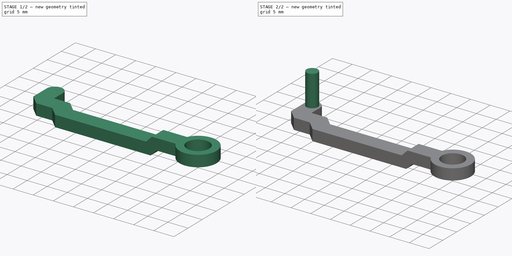
[diagram: build sequence overview — one tinted view per stage of 2, left to right]
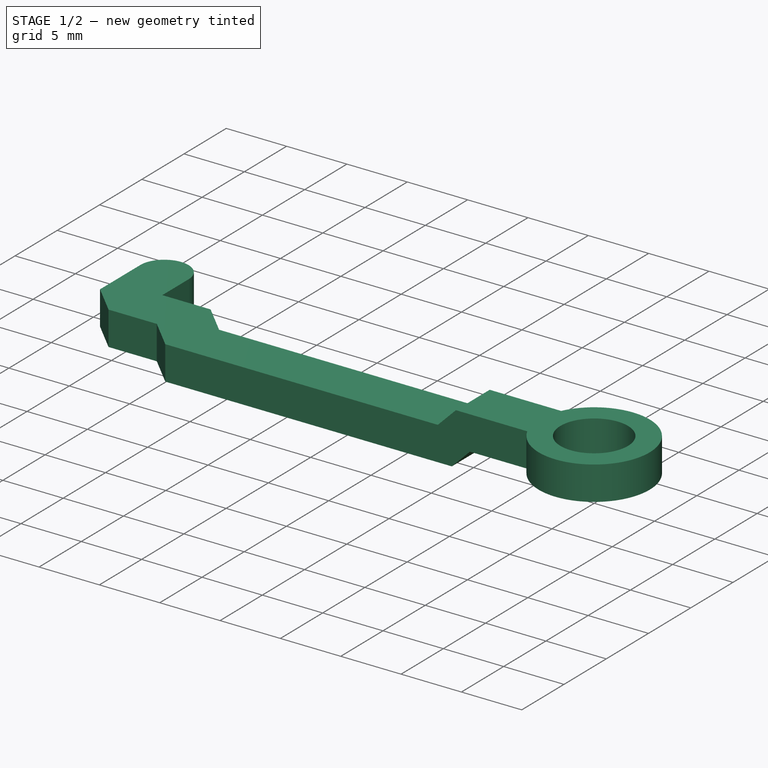
[diagram: stage 1 of 2 — iso view after this stage's code; geometry added in this stage tinted green]
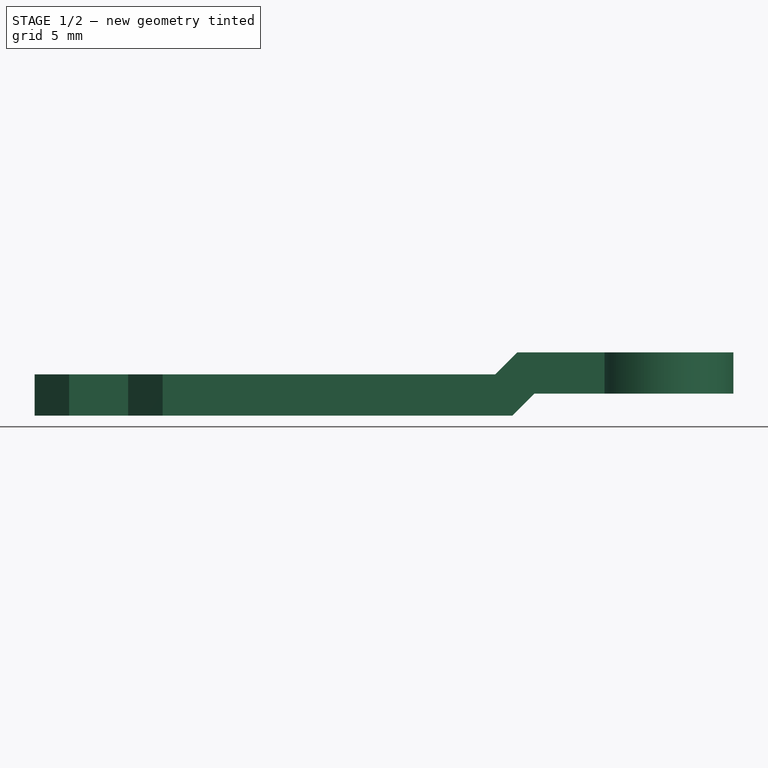
[diagram: stage 1 of 2 — front view after this stage's code; geometry added in this stage tinted green]
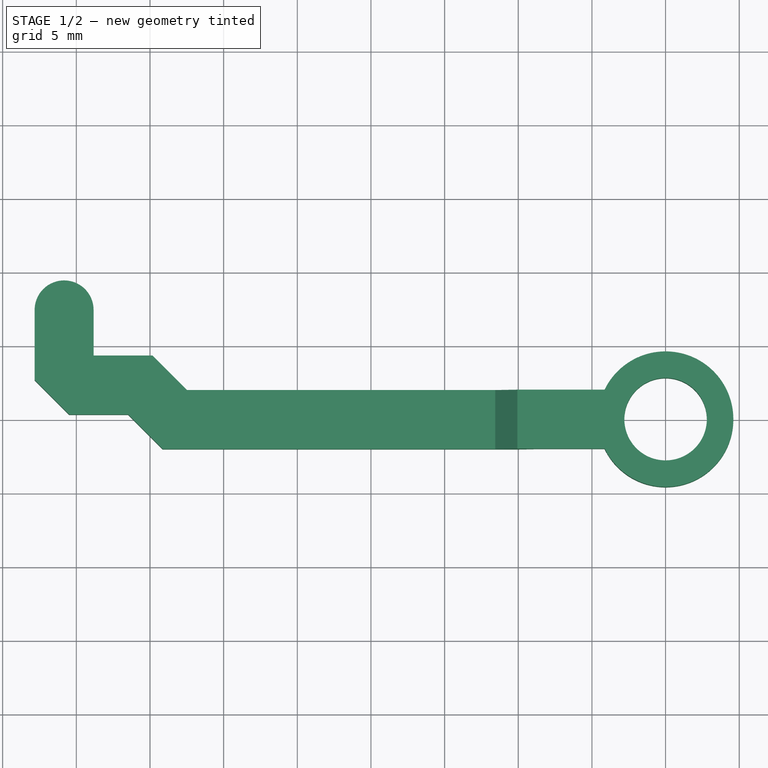
[diagram: stage 1 of 2 — top view after this stage's code; geometry added in this stage tinted green]
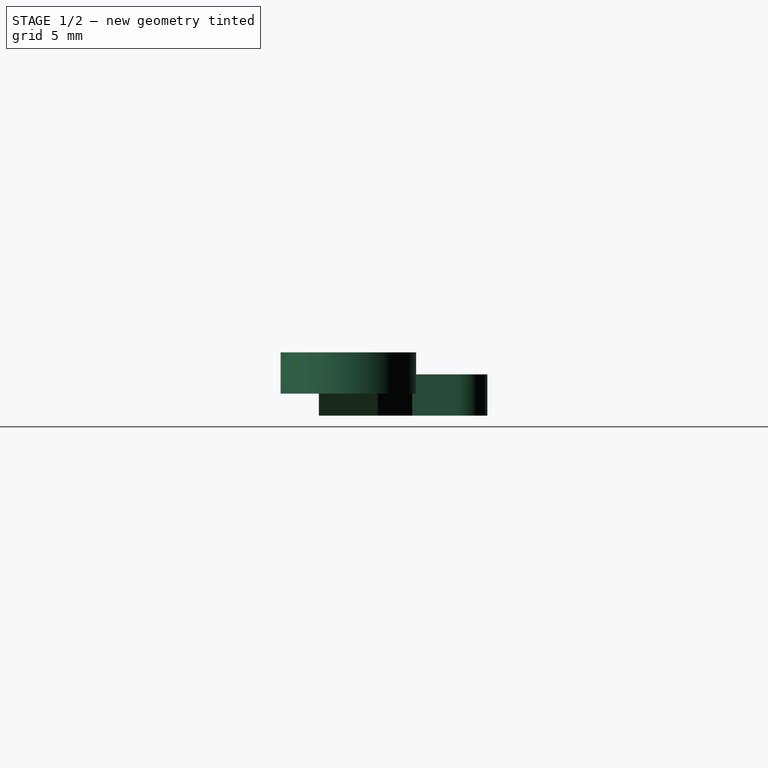
[diagram: stage 1 of 2 — right view after this stage's code; geometry added in this stage tinted green]
FCSTD DOCUMENT  (FreeCAD 0.19R24291 (Git))
Label: RoboDogPart
License: All rights reserved
LicenseURL: http://en.wikipedia.org/wiki/All_rights_reserved
objects: Sketcher::SketchObject×5, PartDesign::Pad×2, PartDesign::Pocket×1, PartDesign::Body×1
note: 12 computed .brp shape members not serialized (recipe doc carries the construction recipe); baked Part::Feature solids carry a one-line shape summary decoded from their .brp

FEATURE [Sketcher::SketchObject] Sketch  label="TTop"
  FullyConstrained = true
  MapMode = 5
  Support = -> [XY_Plane]
  sketch-geometry (22):
    g0: Circle CenterX=0 CenterY=0 CenterZ=0 NormalX=0 NormalY=0 NormalZ=1 AngleXU=0 Radius=2.8
    g1: ArcOfCircle CenterX=0 CenterY=0 CenterZ=0 NormalX=0 NormalY=0 NormalZ=1 AngleXU=0 Radius=4.6 StartAngle=3.59139 EndAngle=8.97498
    g2: LineSegment StartX=-4.14246 StartY=2 StartZ=0 EndX=-32.4856 EndY=2 EndZ=0
    g3: LineSegment StartX=-32.4856 StartY=2 StartZ=0 EndX=-34.8288 EndY=4.34315 EndZ=0
    g4: LineSegment StartX=-34.8288 StartY=4.34315 StartZ=0 EndX=-38.8288 EndY=4.34315 EndZ=0
    g5: LineSegment StartX=-38.8288 StartY=4.34315 StartZ=0 EndX=-38.8288 EndY=7.44315 EndZ=0
    g6: LineSegment StartX=-42.8288 StartY=7.44315 StartZ=0 EndX=-42.8288 EndY=2.68629 EndZ=0
    g7: LineSegment StartX=-42.8288 StartY=2.68629 StartZ=0 EndX=-40.4856 EndY=0.343146 EndZ=0
    g8: LineSegment StartX=-40.4856 StartY=0.343146 StartZ=0 EndX=-36.4856 EndY=0.343146 EndZ=0
    g9: LineSegment StartX=-4.14246 StartY=-2 StartZ=0 EndX=-34.1425 EndY=-2 EndZ=0
    g10: LineSegment StartX=-36.4856 StartY=0.343146 StartZ=0 EndX=-34.1425 EndY=-2 EndZ=0
    g11: LineSegment StartX=-42.8288 StartY=7.44315 StartZ=0 EndX=-38.8288 EndY=7.44315 EndZ=0
    g12: LineSegment StartX=-4.14246 StartY=2 StartZ=0 EndX=-4.14246 EndY=-2 EndZ=0
    g13: LineSegment StartX=-36.4856 StartY=0.343146 StartZ=0 EndX=-36.4856 EndY=4.34315 EndZ=0
    g14: LineSegment StartX=-32.4856 StartY=2 StartZ=0 EndX=-35.314 EndY=-0.828427 EndZ=0
    g15: ArcOfCircle CenterX=-40.8288 CenterY=7.44315 CenterZ=0 NormalX=0 NormalY=0 NormalZ=1 AngleXU=0 Radius=2 StartAngle=-2.7e-15 EndAngle=3.14159
    g16: LineSegment StartX=-38.8288 StartY=4.34315 StartZ=0 EndX=-41.6572 EndY=1.51472 EndZ=0
    g17: LineSegment StartX=0 StartY=4.6 StartZ=0 EndX=0 EndY=2.8 EndZ=0
    g18: LineSegment StartX=-40.8288 StartY=7.44315 StartZ=0 EndX=-40.8288 EndY=9.44315 EndZ=0
    g19: Circle CenterX=-40.8288 CenterY=7.44315 CenterZ=0 NormalX=0 NormalY=0 NormalZ=1 AngleXU=0 Radius=1.45
    g20: LineSegment StartX=-42.8288 StartY=-4.6 StartZ=0 EndX=4.6 EndY=-4.6 EndZ=0
    g21: LineSegment StartX=4.6 StartY=-4.6 StartZ=0 EndX=4.6 EndY=0 EndZ=0
  constraints (63):
    c: Coincident(g1,g0)
    c: Coincident(g2,g1)
    c: Horizontal(g2)
    c: Coincident(g3,g2)
    c: Coincident(g4,g3)
    c: Horizontal(g4)
    c: Coincident(g5,g4)
    c: Vertical(g5)
    c: Vertical(g6)
    c: Coincident(g7,g6)
    c: Coincident(g8,g7)
    c: Horizontal(g8)
    c: Coincident(g9,g1)
    c: Horizontal(g9)
    c: Coincident(g10,g8)
    c: Coincident(g10,g9)
    c: Coincident(g11,g6)
    c: Coincident(g11,g5)
    c: Horizontal(g11)
    c: Coincident(g12,g1)
    c: Coincident(g12,g1)
    c: Vertical(g12)
    c: Coincident(g13,g8)
    c: PointOnObject(g13,g4)
    c: Vertical(g13)
    c: Equal(g12,g13)
    c: Equal(g13,g11)
    c: Parallel(g10,g3)
    c: Coincident(g14,g2)
    c: Perpendicular(g14,g3)
    c: Equal(g14,g13)
    c: PointOnObject(g15,g11)
    c: Coincident(g15,g6)
    c: Coincident(g15,g5)
    c: Coincident(g16,g4)
    c: Perpendicular(g16,g7)
    c: Equal(g16,g14)
    c: Symmetric(g7,g6,g16)
    c: DistanceX(g11,g11) = 4
    c: Radius(g1) = 4.6
    c: PointOnObject(g17,g1)
    c: PointOnObject(g17,g0)
    c: Vertical(g17)
    c: PointOnObject(g0,g17)
    c: DistanceY(g17,g17) = 1.8
    c: Symmetric(g8,g9,g14)
    c: Parallel(g10,g7)
    c: DistanceX(g9,g9) = 30
    c: Equal(g4,g13)
    c: Coincident(g18,g15)
    c: PointOnObject(g18,g15)
    c: Vertical(g18)
    c: DistanceY(g3,g18) = 5.1
    c: Coincident(g19,g15)
    c: Diameter(g19) = 2.9
    c: Diameter(g0) = 5.6
    c: Horizontal(g20)
    c: PointOnObject(g20,g6)
    c: Coincident(g21,g20)
    c: Vertical(g21)
    c: Tangent(g21,g1) = -1.5708
    c: Tangent(g20,g1)
    c: Coincident(g0,g-1)  '__ANCHOR__'
FEATURE [Sketcher::SketchObject] Sketch001  label="TFront"
  ExternalGeometry = -> [Sketch]
  FullyConstrained = true
  MapMode = 5
  Placement = pos=(0,0,0) rot=(1,0,0;1.5708rad)
  Support = -> [XZ_Plane]
  sketch-geometry (10):
    g0: LineSegment StartX=4.6 StartY=-1e-15 StartZ=0 EndX=-10.4 EndY=-1e-15 EndZ=0
    g1: LineSegment StartX=-10.4 StartY=-1e-15 StartZ=0 EndX=-8.9 EndY=1.5 EndZ=0
    g2: LineSegment StartX=-8.9 StartY=1.5 StartZ=0 EndX=4.6 EndY=1.5 EndZ=0
    g3: LineSegment StartX=4.6 StartY=1.5 StartZ=0 EndX=4.6 EndY=-1.1e-15 EndZ=0
    g4: LineSegment StartX=-10.0598 StartY=4.3 StartZ=0 EndX=-11.5598 EndY=2.8 EndZ=0
    g5: LineSegment StartX=-11.5598 StartY=2.8 StartZ=0 EndX=-42.8288 EndY=2.8 EndZ=0
    g6: LineSegment StartX=-42.8288 StartY=2.8 StartZ=0 EndX=-42.8288 EndY=4.3 EndZ=0
    g7: LineSegment StartX=-42.8288 StartY=4.3 StartZ=0 EndX=-10.0598 EndY=4.3 EndZ=0
    g8: LineSegment StartX=-42.8288 StartY=2.8 StartZ=0 EndX=-42.8288 EndY=-9e-16 EndZ=0
    g9: LineSegment StartX=-11.5598 StartY=2.8 StartZ=0 EndX=-9.5799 EndY=0.820101 EndZ=0
  constraints (28):
    c: Coincident(g-3,g0)
    c: PointOnObject(g0,g-3)
    c: Coincident(g0,g1)
    c: Coincident(g1,g2)
    c: Horizontal(g2)
    c: Coincident(g2,g3)
    c: Coincident(g3,g0)
    c: Vertical(g3)
    c: DistanceX(g2,g2) = 13.5
    c: Angle(g0,g1) = 0.785398
    c: DistanceY(g3,g3) = 1.5
    c: Coincident(g4,g5)
    c: Horizontal(g5)
    c: Coincident(g5,g6)
    c: Vertical(g6)
    c: Coincident(g6,g7)
    c: Coincident(g7,g4)
    c: Horizontal(g7)
    c: PointOnObject(g-3,g6)
    c: DistanceY(g-3,g6) = 4.3  'TotalHeight'
    c: Parallel(g4,g1)
    c: DistanceY(g-3,g5) = 2.8
    c: Coincident(g8,g5)
    c: Coincident(g8,g-3)
    c: Coincident(g9,g4)
    c: PointOnObject(g9,g1)
    c: Perpendicular(g1,g9)
    c: Equal(g8,g9)
FEATURE [Sketcher::SketchObject] Sketch002
  ExternalGeometry = -> [Sketch]
  FullyConstrained = true
  MapMode = 5
  Support = -> [XY_Plane]
  sketch-geometry (12):
    g0: ArcOfCircle CenterX=0 CenterY=0 CenterZ=0 NormalX=0 NormalY=0 NormalZ=1 AngleXU=0 Radius=4.6 StartAngle=3.59139 EndAngle=8.97498
    g1: ArcOfCircle CenterX=-40.8288 CenterY=7.44315 CenterZ=0 NormalX=0 NormalY=0 NormalZ=1 AngleXU=0 Radius=2 StartAngle=-2.7e-15 EndAngle=3.14159
    g2: LineSegment StartX=-42.8288 StartY=7.44314 StartZ=0 EndX=-42.8288 EndY=2.68629 EndZ=0
    g3: LineSegment StartX=-42.8288 StartY=2.68629 StartZ=0 EndX=-40.4856 EndY=0.343146 EndZ=0
    g4: LineSegment StartX=-40.4856 StartY=0.343146 StartZ=0 EndX=-36.4856 EndY=0.343146 EndZ=0
    g5: LineSegment StartX=-36.4856 StartY=0.343146 StartZ=0 EndX=-34.1425 EndY=-2 EndZ=0
    g6: LineSegment StartX=-34.1425 StartY=-2 StartZ=0 EndX=-4.14246 EndY=-2 EndZ=0
    g7: LineSegment StartX=-4.14246 StartY=2 StartZ=0 EndX=-32.4856 EndY=2 EndZ=0
    g8: LineSegment StartX=-32.4856 StartY=2 StartZ=0 EndX=-34.8288 EndY=4.34315 EndZ=0
    g9: LineSegment StartX=-34.8288 StartY=4.34315 StartZ=0 EndX=-38.8288 EndY=4.34315 EndZ=0
    g10: LineSegment StartX=-38.8288 StartY=4.34315 StartZ=0 EndX=-38.8288 EndY=7.44315 EndZ=0
    g11: Circle CenterX=0 CenterY=0 CenterZ=0 NormalX=0 NormalY=0 NormalZ=1 AngleXU=0 Radius=2.8
  constraints (26):
    c: Coincident(g0,g-1)
    c: Coincident(g0,g-6)
    c: PointOnObject(g0,g-5)
    c: Coincident(g1,g-10)
    c: Coincident(g1,g-10)
    c: PointOnObject(g1,g-3)
    c: Coincident(g2,g1)
    c: Coincident(g2,g-3)
    c: Coincident(g2,g3)
    c: Coincident(g3,g-4)
    c: Coincident(g3,g4)
    c: Coincident(g4,g-4)
    c: Coincident(g4,g5)
    c: Coincident(g5,g-5)
    c: Coincident(g5,g6)
    c: Coincident(g6,g0)
    c: Coincident(g0,g7)
    c: Coincident(g7,g-6)
    c: Coincident(g7,g8)
    c: Coincident(g8,g-7)
    c: Coincident(g8,g9)
    c: Coincident(g9,g-8)
    c: Coincident(g9,g10)
    c: Coincident(g10,g1)
    c: Coincident(g-9,g11)
    c: Equal(g11,g-9)
FEATURE [PartDesign::Pad] Pad
  Direction = (1,1,1)
  Length = 4.3
  Length2 = 100
  Profile = -> Sketch002
  Type = 0
  expr: Length = <<TFront>>.Constraints.TotalHeight
FEATURE [Sketcher::SketchObject] Sketch003
  ExternalGeometry = -> [Sketch001]
  FullyConstrained = true
  MapMode = 5
  Placement = pos=(0,0,0) rot=(1,0,0;1.5708rad)
  Support = -> [XZ_Plane]
  sketch-geometry (8):
    g0: LineSegment StartX=-42.8288 StartY=4.3 StartZ=0 EndX=-42.8288 EndY=2.8 EndZ=0
    g1: LineSegment StartX=-42.8288 StartY=2.8 StartZ=0 EndX=-11.5598 EndY=2.8 EndZ=0
    g2: LineSegment StartX=-11.5598 StartY=2.8 StartZ=0 EndX=-10.0598 EndY=4.3 EndZ=0
    g3: LineSegment StartX=-10.0598 StartY=4.3 StartZ=0 EndX=-42.8288 EndY=4.3 EndZ=0
    g4: LineSegment StartX=-10.4 StartY=0 StartZ=0 EndX=-8.9 EndY=1.5 EndZ=0
    g5: LineSegment StartX=-8.9 StartY=1.5 StartZ=0 EndX=4.6 EndY=1.5 EndZ=0
    g6: LineSegment StartX=4.6 StartY=1.5 StartZ=0 EndX=4.6 EndY=-9e-16 EndZ=0
    g7: LineSegment StartX=4.6 StartY=-9e-16 StartZ=0 EndX=-10.4 EndY=0 EndZ=0
  constraints (16):
    c: Coincident(g-3,g0)
    c: Coincident(g0,g-4)
    c: Coincident(g0,g1)
    c: Coincident(g1,g-4)
    c: Coincident(g1,g2)
    c: Coincident(g2,g-3)
    c: Coincident(g2,g3)
    c: Coincident(g3,g0)
    c: Coincident(g-6,g4)
    c: Coincident(g4,g-5)
    c: Coincident(g4,g5)
    c: Coincident(g5,g-5)
    c: Coincident(g5,g6)
    c: Coincident(g6,g-6)
    c: Coincident(g6,g7)
    c: Coincident(g7,g4)
FEATURE [PartDesign::Pocket] Pocket
  BaseFeature = -> Pad
  Length = 5
  Length2 = 100
  Midplane = true
  Profile = -> Sketch003
  Type = 1
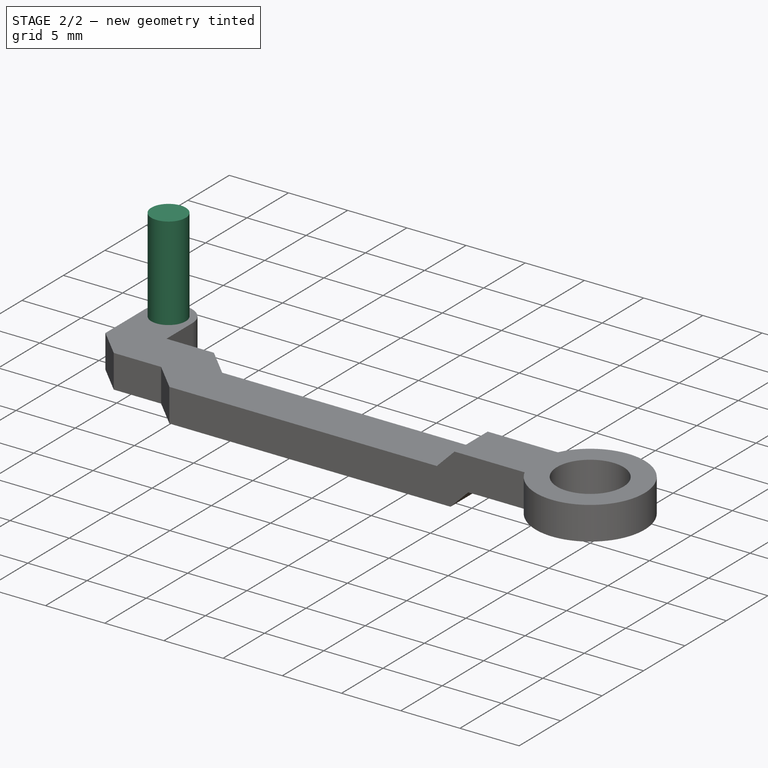
[diagram: stage 2 of 2 — iso view after this stage's code; geometry added in this stage tinted green]
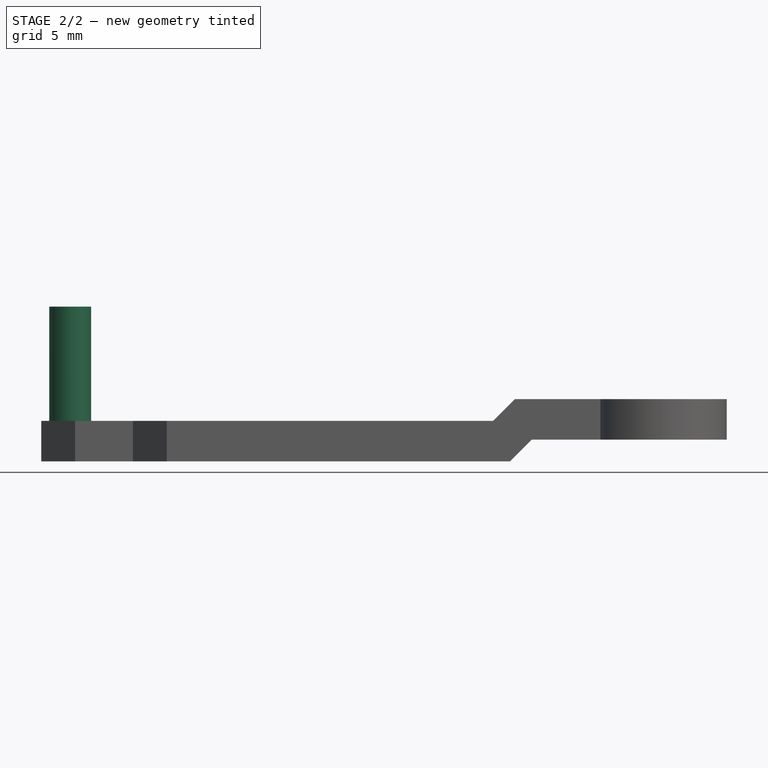
[diagram: stage 2 of 2 — front view after this stage's code; geometry added in this stage tinted green]
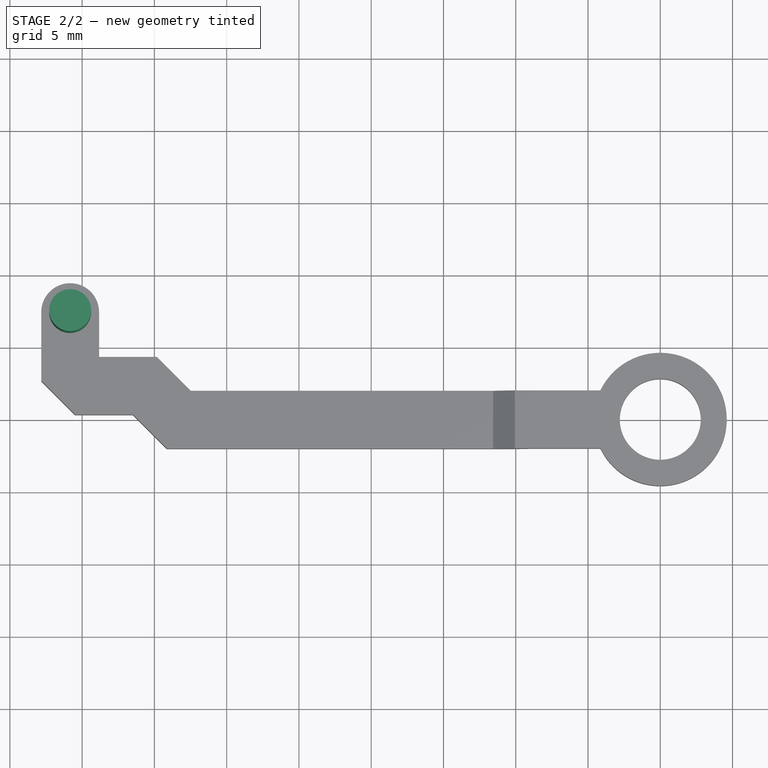
[diagram: stage 2 of 2 — top view after this stage's code; geometry added in this stage tinted green]
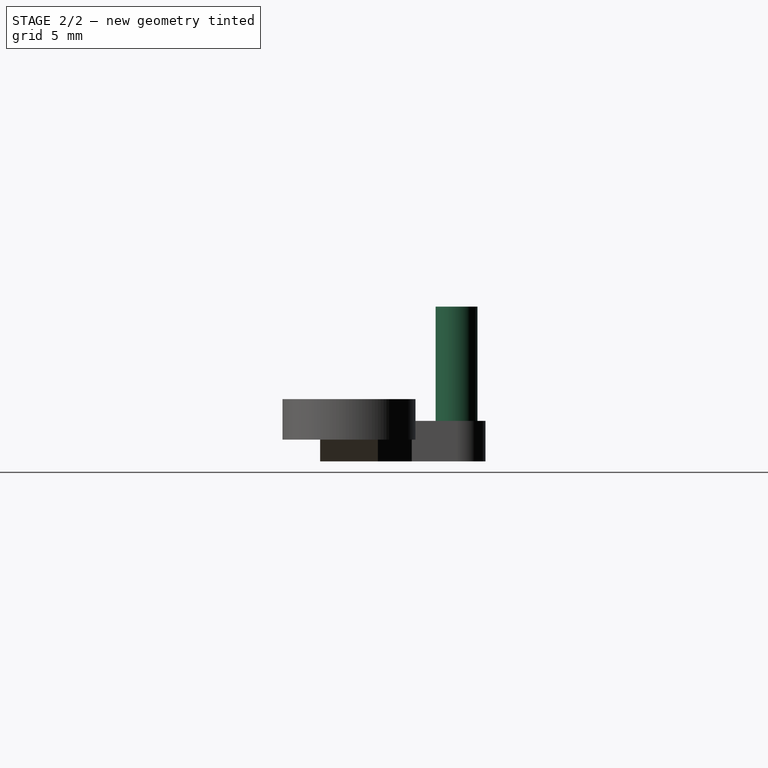
[diagram: stage 2 of 2 — right view after this stage's code; geometry added in this stage tinted green]
FEATURE [Sketcher::SketchObject] Sketch004
  ExternalGeometry = -> [Sketch]
  FullyConstrained = true
  MapMode = 5
  Support = -> [XY_Plane]
  sketch-geometry (1):
    g0: Circle CenterX=-40.8288 CenterY=7.44315 CenterZ=0 NormalX=0 NormalY=0 NormalZ=1 AngleXU=0 Radius=1.45
  constraints (2):
    c: Coincident(g0,g-3)
    c: Equal(g0,g-3)
FEATURE [PartDesign::Pad] Pad001
  BaseFeature = -> Pocket
  Direction = (1,1,1)
  Length = 10.7
  Length2 = 100
  Profile = -> Sketch004
  Refine = true
  Type = 0
FEATURE [PartDesign::Body] Body
  Group = -> [Sketch,Sketch001,Sketch002,Pad,Sketch003,Pocket,Sketch004,Pad001]
  Origin = -> Origin
  Tip = -> Pad001
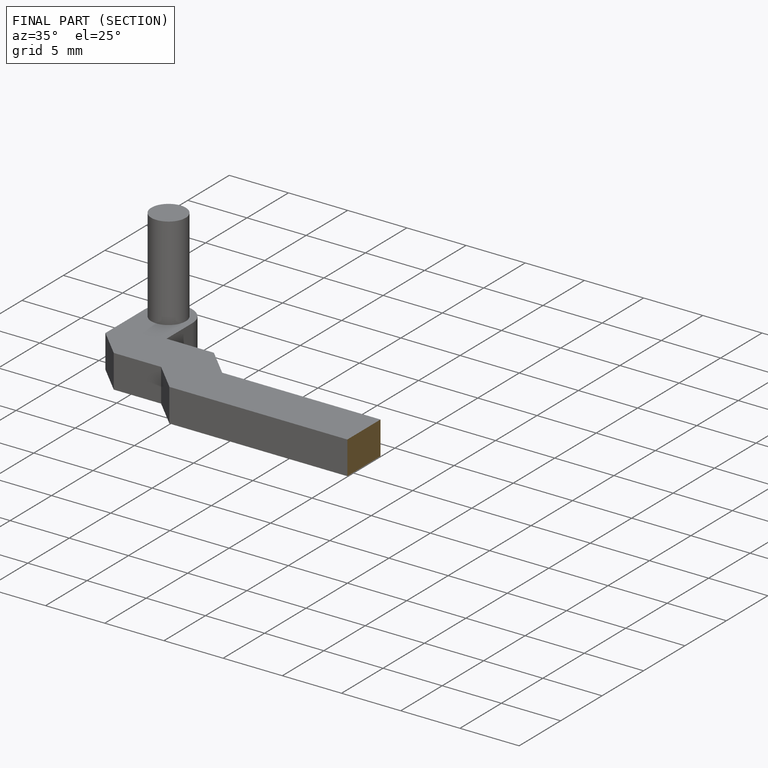
[diagram: finished part — half-section view (interior)]
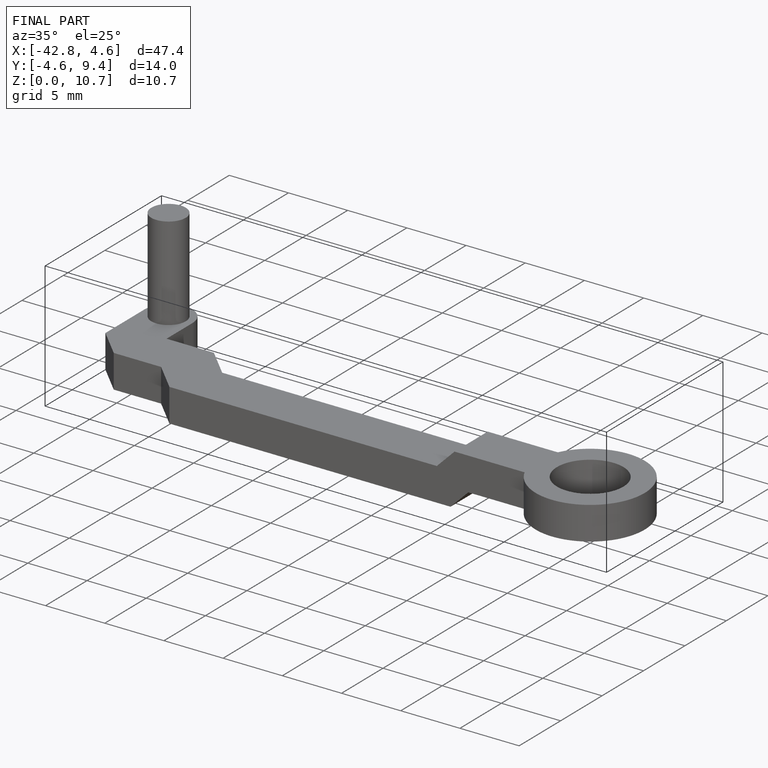
[diagram: finished part — iso view with bounding-box wireframe]
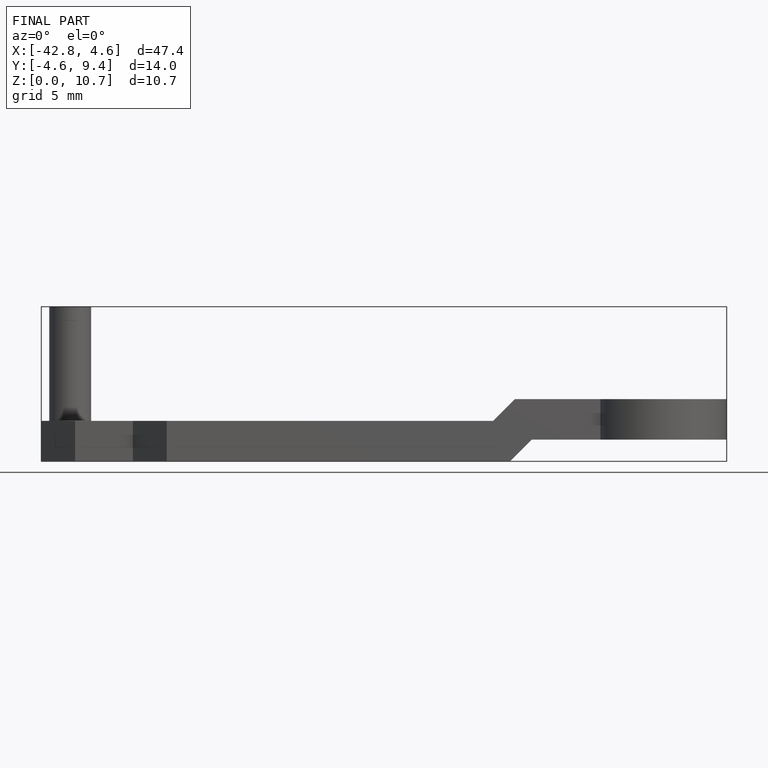
[diagram: finished part — front view with bounding-box wireframe]
